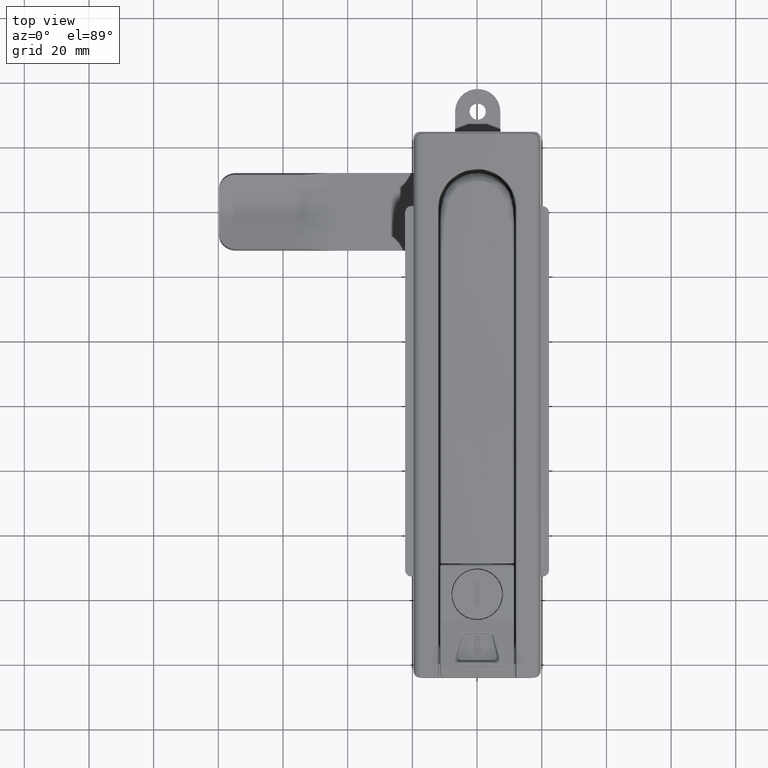
[diagram: clean part render]
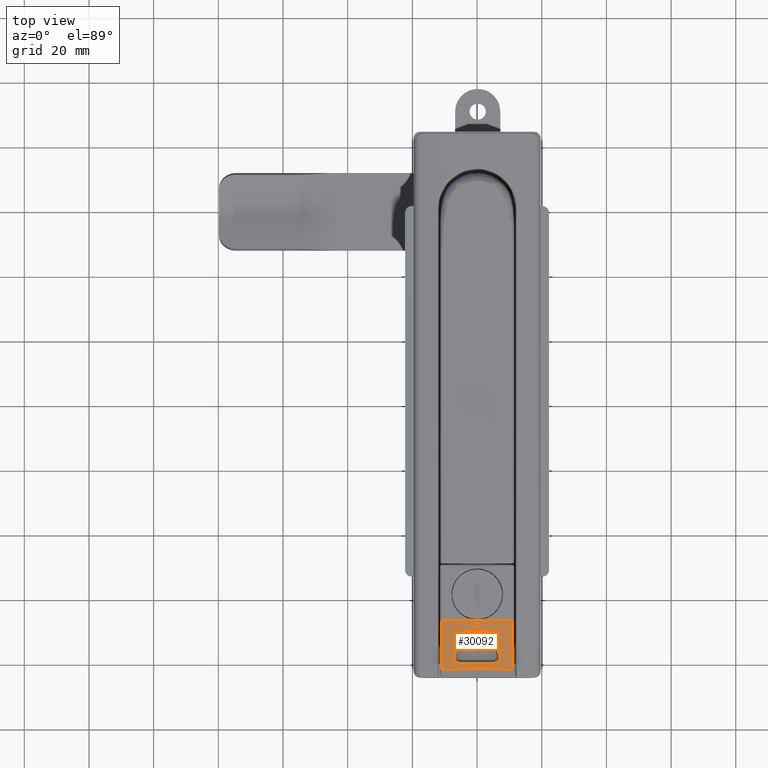
[diagram: same view with one face highlighted and labeled with its STEP entity id]
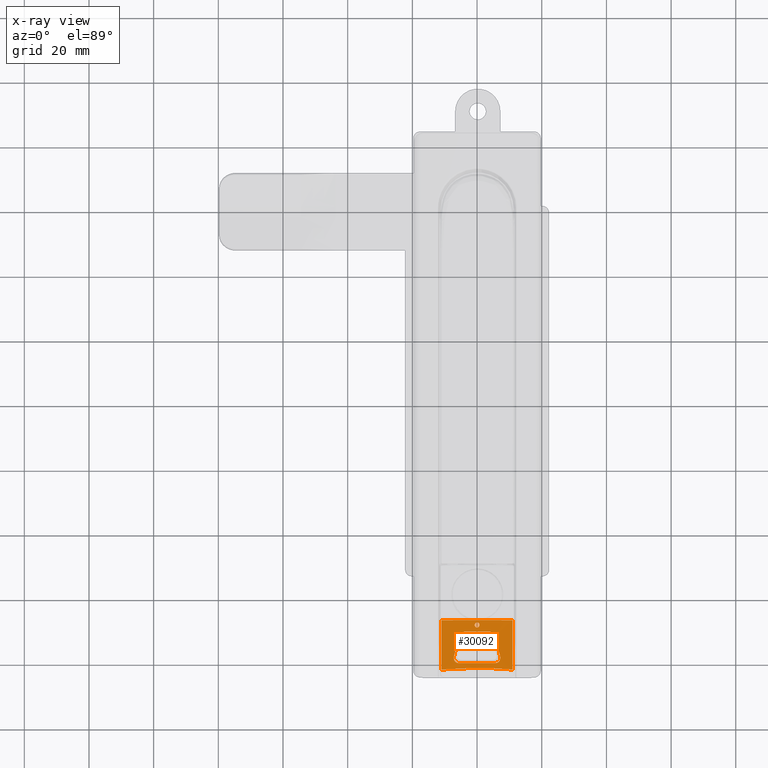
[diagram: x-ray of the same camera — body ghosted, the highlighted face saturated]
A machine part, top view. The second image highlights one B-rep face of the part: STEP entity #30092.
The next image is the same camera in x-ray: the body ghosted, the highlighted face saturated — about 0% of this face is hidden behind the body in this view.
In plain terms, the highlighted face is a freeform B-spline surface patch.
Its self-contained STEP definition (entity closure, byte-faithful):
#466=B_SPLINE_SURFACE_WITH_KNOTS('',3,3,((#69103,#69104,#69105,#69106,#69107,
#69108),(#69109,#69110,#69111,#69112,#69113,#69114),(#69115,#69116,#69117,
#69118,#69119,#69120),(#69121,#69122,#69123,#69124,#69125,#69126),(#69127,
#69128,#69129,#69130,#69131,#69132),(#69133,#69134,#69135,#69136,#69137,
#69138),(#69139,#69140,#69141,#69142,#69143,#69144)),.UNSPECIFIED.,.F.,
 .F.,.F.,(4,1,1,1,4),(4,1,1,4),(0.,0.25,0.5,0.75,1.),(0.,0.00999237478913283,
0.961647116611307,1.),.UNSPECIFIED.);
#2411=B_SPLINE_CURVE_WITH_KNOTS('',3,(#67579,#67580,#67581,#67582,#67583,
#67584,#67585,#67586,#67587,#67588,#67589,#67590,#67591,#67592,#67593,#67594,
#67595,#67596,#67597,#67598,#67599,#67600,#67601,#67602,#67603,#67604,#67605,
#67606,#67607,#67608,#67609,#67610,#67611,#67612,#67613,#67614,#67615,#67616,
#67617,#67618,#67619,#67620,#67621,#67622),.UNSPECIFIED.,.T.,.F.,(4,2,2,
2,2,2,2,2,2,2,2,2,2,2,2,2,2,2,2,2,2,4),(0.,0.0195291723512512,0.0319623175673323,
0.0428763882786167,0.0557252596081275,0.0767206693615535,0.106866783749459,
0.133969840136838,0.162899208878109,0.192958568832212,0.222301564469527,
0.24853663386686,0.263336816806255,0.274543203075875,0.285985995544227,
0.301813773108014,0.331882772521763,0.358140326482411,0.386178482621926,
0.416145000960438,0.445948041574119,0.473926306790059),.UNSPECIFIED.);
#2438=B_SPLINE_CURVE_WITH_KNOTS('',3,(#69153,#69154,#69155,#69156),
 .UNSPECIFIED.,.F.,.F.,(4,4),(0.,0.0605421784685583),.UNSPECIFIED.);
#2439=B_SPLINE_CURVE_WITH_KNOTS('',3,(#69162,#69163,#69164,#69165,#69166,
#69167,#69168,#69169,#69170,#69171,#69172,#69173,#69174,#69175,#69176,#69177,
#69178,#69179,#69180,#69181,#69182,#69183,#69184,#69185,#69186,#69187,#69188,
#69189,#69190,#69191,#69192,#69193,#69194,#69195,#69196,#69197,#69198,#69199,
#69200,#69201,#69202,#69203,#69204,#69205,#69206,#69207,#69208,#69209,#69210,
#69211,#69212,#69213,#69214,#69215,#69216,#69217,#69218,#69219,#69220,#69221),
 .UNSPECIFIED.,.F.,.F.,(4,2,2,2,2,2,2,2,2,2,2,2,2,2,2,2,2,2,2,2,2,2,2,2,
2,2,2,2,2,4),(0.,0.0357708257350015,0.0733009753068901,0.11257997840001,
0.153998599984531,0.196152984692158,0.238366379655901,0.280873913152827,
0.320950578577,0.359928797105915,0.397253953380952,0.408396513643606,0.448395036165848,
0.486558178237106,0.499519930276303,0.5,0.535417749766672,0.572090464470969,
0.610034231174652,0.649803700307655,0.690533113662324,0.731949791581025,
0.773654987489743,0.814895195155441,0.85544020413514,0.894544246554465,
0.91326691664003,0.953378379597088,0.991770552061254,1.),.UNSPECIFIED.);
#2440=B_SPLINE_CURVE_WITH_KNOTS('',3,(#69223,#69224,#69225,#69226,#69227),
 .UNSPECIFIED.,.F.,.F.,(4,1,4),(0.,0.500000000001228,1.),.UNSPECIFIED.);
#2441=B_SPLINE_CURVE_WITH_KNOTS('',3,(#69229,#69230,#69231,#69232,#69233,
#69234,#69235,#69236,#69237,#69238,#69239,#69240,#69241,#69242,#69243,#69244,
#69245,#69246,#69247,#69248,#69249,#69250,#69251,#69252,#69253,#69254,#69255,
#69256,#69257,#69258,#69259,#69260,#69261,#69262,#69263,#69264,#69265,#69266,
#69267,#69268,#69269,#69270,#69271,#69272,#69273,#69274,#69275,#69276,#69277,
#69278),.UNSPECIFIED.,.F.,.F.,(4,2,2,2,2,2,2,2,2,2,2,2,2,2,2,2,2,2,2,2,
2,2,2,2,4),(0.,0.040728020313277,0.0830290731726635,0.126973444696566,0.173601764109495,
0.221381666752235,0.270090914948617,0.31914481874055,0.367498029620194,
0.41498787207907,0.460729592362321,0.5,0.500522683354325,0.54246029788417,
0.585926722520741,0.631757646567153,0.678948370119745,0.72718517483731,
0.775828234682975,0.823369957035681,0.869510622630889,0.913077457321135,
0.937428661267244,0.974931872222094,0.999999999999995),.UNSPECIFIED.);
#2442=B_SPLINE_CURVE_WITH_KNOTS('',3,(#69282,#69283,#69284,#69285,#69286,
#69287,#69288,#69289,#69290,#69291,#69292,#69293,#69294,#69295,#69296,#69297,
#69298,#69299,#69300,#69301,#69302,#69303),.UNSPECIFIED.,.F.,.F.,(4,2,2,
2,2,2,2,2,2,2,4),(0.,0.0951039272646496,0.193244462314911,0.295883843141502,
0.400637972293855,0.506417322851333,0.611772777834931,0.714027757251198,
0.813866206548515,0.909508419245603,1.),.UNSPECIFIED.);
#2443=B_SPLINE_CURVE_WITH_KNOTS('',3,(#69306,#69307,#69308,#69309,#69310,
#69311,#69312,#69313,#69314,#69315,#69316,#69317,#69318,#69319,#69320,#69321,
#69322,#69323,#69324,#69325,#69326,#69327),.UNSPECIFIED.,.F.,.F.,(4,2,2,
2,2,2,2,2,2,2,4),(0.,0.0946407289536396,0.192372188094754,0.294730025732506,
0.399311620174587,0.505054461450249,0.610518672994111,0.713067591518369,
0.813272915780215,0.909371031269213,1.),.UNSPECIFIED.);
#2687=FACE_BOUND('',#6385,.T.);
#2688=FACE_BOUND('',#6386,.T.);
#2787=ELLIPSE('',#31982,84.7746318186807,59.8258751481488);
#2788=ELLIPSE('',#31983,84.7746243124644,59.8258645451666);
#2794=ELLIPSE('',#32074,85.0541057275226,79.9376758886292);
#2795=ELLIPSE('',#32075,70.1547299272525,40.411639740969);
#4529=FACE_OUTER_BOUND('',#6384,.T.);
#6384=EDGE_LOOP('',(#25964,#25965,#25966,#25967,#25968,#25969,#25970,#25971));
#6385=EDGE_LOOP('',(#25972));
#6386=EDGE_LOOP('',(#25973,#25974,#25975,#25976,#25977,#25978,#25979,#25980));
#8255=LINE('',#69148,#10031);
#8256=LINE('',#69157,#10032);
#10031=VECTOR('',#37322,15.4305301893659);
#10032=VECTOR('',#37327,15.4305301893638);
#10931=CIRCLE('',#32076,119.792025334916);
#10932=CIRCLE('',#32077,1633.5283028876);
#10933=CIRCLE('',#32078,1633.52832517548);
#10934=CIRCLE('',#32079,114.59653422842);
#13506=VERTEX_POINT('',#67578);
#13559=VERTEX_POINT('',#67932);
#13560=VERTEX_POINT('',#67934);
#13561=VERTEX_POINT('',#67936);
#13562=VERTEX_POINT('',#68083);
#13668=VERTEX_POINT('',#69145);
#13669=VERTEX_POINT('',#69146);
#13670=VERTEX_POINT('',#69149);
#13671=VERTEX_POINT('',#69151);
#13672=VERTEX_POINT('',#69158);
#13673=VERTEX_POINT('',#69159);
#13674=VERTEX_POINT('',#69161);
#13675=VERTEX_POINT('',#69222);
#13676=VERTEX_POINT('',#69228);
#13677=VERTEX_POINT('',#69279);
#13678=VERTEX_POINT('',#69281);
#13679=VERTEX_POINT('',#69304);
#17634=EDGE_CURVE('',#13506,#13506,#2411,.T.);
#17693=EDGE_CURVE('',#13559,#13560,#2787,.T.);
#17695=EDGE_CURVE('',#13561,#13562,#2788,.T.);
#17848=EDGE_CURVE('',#13668,#13669,#2794,.T.);
#17849=EDGE_CURVE('',#13669,#13562,#8255,.T.);
#17850=EDGE_CURVE('',#13670,#13561,#2795,.T.);
#17851=EDGE_CURVE('',#13671,#13670,#10931,.T.);
#17852=EDGE_CURVE('',#13560,#13671,#2438,.T.);
#17853=EDGE_CURVE('',#13559,#13668,#8256,.T.);
#17854=EDGE_CURVE('',#13672,#13673,#10932,.T.);
#17855=EDGE_CURVE('',#13673,#13674,#2439,.T.);
#17856=EDGE_CURVE('',#13674,#13675,#2440,.T.);
#17857=EDGE_CURVE('',#13675,#13676,#2441,.T.);
#17858=EDGE_CURVE('',#13676,#13677,#10933,.T.);
#17859=EDGE_CURVE('',#13677,#13678,#2442,.T.);
#17860=EDGE_CURVE('',#13678,#13679,#10934,.T.);
#17861=EDGE_CURVE('',#13679,#13672,#2443,.T.);
#25964=ORIENTED_EDGE('',*,*,#17848,.T.);
#25965=ORIENTED_EDGE('',*,*,#17849,.T.);
#25966=ORIENTED_EDGE('',*,*,#17695,.F.);
#25967=ORIENTED_EDGE('',*,*,#17850,.F.);
#25968=ORIENTED_EDGE('',*,*,#17851,.F.);
#25969=ORIENTED_EDGE('',*,*,#17852,.F.);
#25970=ORIENTED_EDGE('',*,*,#17693,.F.);
#25971=ORIENTED_EDGE('',*,*,#17853,.T.);
#25972=ORIENTED_EDGE('',*,*,#17634,.T.);
#25973=ORIENTED_EDGE('',*,*,#17854,.T.);
#25974=ORIENTED_EDGE('',*,*,#17855,.T.);
#25975=ORIENTED_EDGE('',*,*,#17856,.T.);
#25976=ORIENTED_EDGE('',*,*,#17857,.T.);
#25977=ORIENTED_EDGE('',*,*,#17858,.T.);
#25978=ORIENTED_EDGE('',*,*,#17859,.T.);
#25979=ORIENTED_EDGE('',*,*,#17860,.T.);
#25980=ORIENTED_EDGE('',*,*,#17861,.T.);
#30092=ADVANCED_FACE('',(#4529,#2687,#2688),#466,.F.);
#31982=AXIS2_PLACEMENT_3D('',#67935,#37054,#37055);
#31983=AXIS2_PLACEMENT_3D('',#68084,#37056,#37057);
#32074=AXIS2_PLACEMENT_3D('',#69147,#37320,#37321);
#32075=AXIS2_PLACEMENT_3D('',#69150,#37323,#37324);
#32076=AXIS2_PLACEMENT_3D('',#69152,#37325,#37326);
#32077=AXIS2_PLACEMENT_3D('',#69160,#37328,#37329);
#32078=AXIS2_PLACEMENT_3D('',#69280,#37330,#37331);
#32079=AXIS2_PLACEMENT_3D('',#69305,#37332,#37333);
#37054=DIRECTION('center_axis',(1.,0.,0.));
#37055=DIRECTION('ref_axis',(0.,0.998939396080404,-0.046044358596016));
#37056=DIRECTION('center_axis',(1.,0.,0.));
#37057=DIRECTION('ref_axis',(0.,0.998939396106571,0.0460443580283091));
#37320=DIRECTION('center_axis',(0.664161945125916,-2.05147272377281E-14,
0.747588730952092));
#37321=DIRECTION('ref_axis',(8.45145622449227E-12,-1.,-7.5357614410109E-12));
#37322=DIRECTION('',(0.993324406193453,6.4754788714311E-15,0.115354341315892));
#37323=DIRECTION('center_axis',(0.999999998498174,7.20123087154622E-7,-5.48008542616439E-5));
#37324=DIRECTION('ref_axis',(3.81854732375826E-6,0.996568172816272,0.0827760648681516));
#37325=DIRECTION('center_axis',(0.999999999959765,-3.20215909881715E-9,
8.97046319368409E-6));
#37326=DIRECTION('ref_axis',(8.96990836408372E-6,0.0114846133751414,-0.999934049612855));
#37327=DIRECTION('',(-0.993324406193454,-6.47547887143196E-15,-0.115354341315888));
#37328=DIRECTION('center_axis',(0.199197455978139,0.884171879509864,0.422564150178208));
#37329=DIRECTION('ref_axis',(0.195645142864149,0.386643039568141,-0.901238113945019));
#37330=DIRECTION('center_axis',(0.199197455983849,-0.884171879521096,0.422564150152016));
#37331=DIRECTION('ref_axis',(0.199393678130494,-0.385616122997995,-0.900856462931575));
#37332=DIRECTION('center_axis',(0.906830566734151,-5.28309984487051E-14,
0.421495341891957));
#37333=DIRECTION('ref_axis',(0.4212857007379,0.0315357286837327,-0.906379532078126));
#67578=CARTESIAN_POINT('',(-128.189324665327,-0.352881657666939,-37.546950528898));
#67579=CARTESIAN_POINT('Ctrl Pts',(-129.512849916115,0.353008494960208,
-37.7006505802503));
#67580=CARTESIAN_POINT('Ctrl Pts',(-129.543432100323,0.295662714213781,
-37.7043710973815));
#67581=CARTESIAN_POINT('Ctrl Pts',(-129.566449752621,0.234549401316013,
-37.7071824359909));
#67582=CARTESIAN_POINT('Ctrl Pts',(-129.590746420521,0.13086065882289,-37.7101522219197));
#67583=CARTESIAN_POINT('Ctrl Pts',(-129.596841270764,0.0898055241136292,
-37.7108981886959));
#67584=CARTESIAN_POINT('Ctrl Pts',(-129.601859386764,0.0121477086541944,
-37.7115123604613));
#67585=CARTESIAN_POINT('Ctrl Pts',(-129.601560828661,-0.0242770077500478,
-37.7114758309059));
#67586=CARTESIAN_POINT('Ctrl Pts',(-129.595158712279,-0.103221940701956,
-37.7106924479942));
#67587=CARTESIAN_POINT('Ctrl Pts',(-129.588047932097,-0.145524372606945,
-37.7098223091866));
#67588=CARTESIAN_POINT('Ctrl Pts',(-129.559923006658,-0.254720276661591,
-37.7063856851149));
#67589=CARTESIAN_POINT('Ctrl Pts',(-129.533097446884,-0.319637802279947,
-37.7031107655381));
#67590=CARTESIAN_POINT('Ctrl Pts',(-129.446898461935,-0.466338995150201,
-37.6926352390137));
#67591=CARTESIAN_POINT('Ctrl Pts',(-129.37932744247,-0.541628965662016,
-37.6844551453854));
#67592=CARTESIAN_POINT('Ctrl Pts',(-129.226970168439,-0.655116215987815,
-37.6661921867919));
#67593=CARTESIAN_POINT('Ctrl Pts',(-129.145827365402,-0.695385513896985,
-37.6565326632028));
#67594=CARTESIAN_POINT('Ctrl Pts',(-128.967519785981,-0.746990503529659,
-37.6355155609383));
#67595=CARTESIAN_POINT('Ctrl Pts',(-128.871209828628,-0.755740782766595,
-37.6242736662665));
#67596=CARTESIAN_POINT('Ctrl Pts',(-128.676810045521,-0.736149552791682,
-37.6018201265879));
#67597=CARTESIAN_POINT('Ctrl Pts',(-128.580642186197,-0.706531759353827,
-37.5908395830089));
#67598=CARTESIAN_POINT('Ctrl Pts',(-128.407484536746,-0.612451479992981,
-37.5712483720709));
#67599=CARTESIAN_POINT('Ctrl Pts',(-128.331709125065,-0.54971267171398,
-37.5627677949626));
#67600=CARTESIAN_POINT('Ctrl Pts',(-128.2148575775,-0.406531051972992,-37.5497646370966));
#67601=CARTESIAN_POINT('Ctrl Pts',(-128.171863351441,-0.329775265833774,
-37.5450170164424));
#67602=CARTESIAN_POINT('Ctrl Pts',(-128.126780419778,-0.200732444841371,
-37.5400479898653));
#67603=CARTESIAN_POINT('Ctrl Pts',(-128.115144548035,-0.152687753592873,
-37.5387685345585));
#67604=CARTESIAN_POINT('Ctrl Pts',(-128.103134209514,-0.0668474930454903,
-37.5374482101042));
#67605=CARTESIAN_POINT('Ctrl Pts',(-128.10072884095,-0.0295212017944262,
-37.5371840079638));
#67606=CARTESIAN_POINT('Ctrl Pts',(-128.101508266688,0.0459701386466374,
-37.5372695858067));
#67607=CARTESIAN_POINT('Ctrl Pts',(-128.104810872073,0.0840213285781851,
-37.5376323019836));
#67608=CARTESIAN_POINT('Ctrl Pts',(-128.119542228389,0.17370489269345,-37.5392519429084));
#67609=CARTESIAN_POINT('Ctrl Pts',(-128.133557133537,0.224693180689769,
-37.5407934219413));
#67610=CARTESIAN_POINT('Ctrl Pts',(-128.189339303064,0.367015209703316,
-37.5469460423664));
#67611=CARTESIAN_POINT('Ctrl Pts',(-128.244148860167,0.451893111145134,
-37.553005983078));
#67612=CARTESIAN_POINT('Ctrl Pts',(-128.374788556135,0.58597767501715,-37.567591127797));
#67613=CARTESIAN_POINT('Ctrl Pts',(-128.446064188195,0.637308445582505,
-37.5755959302734));
#67614=CARTESIAN_POINT('Ctrl Pts',(-128.608170013542,0.715730394411206,
-37.5939791566144));
#67615=CARTESIAN_POINT('Ctrl Pts',(-128.698624965216,0.740278614986911,
-37.6043278523393));
#67616=CARTESIAN_POINT('Ctrl Pts',(-128.890128905551,0.755617473878624,
-37.6264713853315));
#67617=CARTESIAN_POINT('Ctrl Pts',(-128.989675686358,0.743825873867385,
-37.6381092147833));
#67618=CARTESIAN_POINT('Ctrl Pts',(-129.177905122422,0.682312951655463,
-37.6603343389325));
#67619=CARTESIAN_POINT('Ctrl Pts',(-129.264883797668,0.633373617236737,
-37.6707173274895));
#67620=CARTESIAN_POINT('Ctrl Pts',(-129.410364143553,0.508341846433795,
-37.6882057118728));
#67621=CARTESIAN_POINT('Ctrl Pts',(-129.469036668669,0.435164330029992,
-37.6953204201614));
#67622=CARTESIAN_POINT('Ctrl Pts',(-129.512849916115,0.353008494960208,
-37.7006505802503));
#67932=CARTESIAN_POINT('',(-127.349999999999,-10.9955110707675,-36.945182655165));
#67934=CARTESIAN_POINT('',(-127.349999999999,-1.56516752647009,-37.4397763234029));
#67935=CARTESIAN_POINT('Origin',(-127.349999999999,-2.77067505467196,22.4397635151877));
#67936=CARTESIAN_POINT('',(-127.349999999999,1.56516752646869,-37.4397763234026));
#68083=CARTESIAN_POINT('',(-127.349999999999,10.9955110707683,-36.9451826551623));
#68084=CARTESIAN_POINT('Origin',(-127.349999999999,2.77067550877927,22.4397529218796));
#69103=CARTESIAN_POINT('Ctrl Pts',(-127.184714768464,-21.817424229284,-35.4308054963804));
#69104=CARTESIAN_POINT('Ctrl Pts',(-127.239834934616,-21.817424229284,-35.4372065778599));
#69105=CARTESIAN_POINT('Ctrl Pts',(-132.542088729661,-21.817424229284,-36.0529550586216));
#69106=CARTESIAN_POINT('Ctrl Pts',(-137.812470490928,-21.817424229284,-36.6650022536402));
#69107=CARTESIAN_POINT('Ctrl Pts',(-143.030188622354,-21.8174242292841,
-37.2709336436975));
#69108=CARTESIAN_POINT('Ctrl Pts',(-143.232322959458,-21.8174242292841,
-37.2944074183965));
#69109=CARTESIAN_POINT('Ctrl Pts',(-127.187125953741,-18.2417908139315,
-36.0921966174133));
#69110=CARTESIAN_POINT('Ctrl Pts',(-127.241434098168,-18.2417908139315,
-36.0985033991549));
#69111=CARTESIAN_POINT('Ctrl Pts',(-132.466335787282,-18.2417908139315,
-36.7052690127149));
#69112=CARTESIAN_POINT('Ctrl Pts',(-137.736717548549,-18.2417908139316,
-37.3173162077335));
#69113=CARTESIAN_POINT('Ctrl Pts',(-142.954435679976,-18.2417908139316,
-37.9232475977908));
#69114=CARTESIAN_POINT('Ctrl Pts',(-143.156570017079,-18.2417908139316,
-37.9467213724898));
#69115=CARTESIAN_POINT('Ctrl Pts',(-127.190780579657,-11.0003483328557,
-37.0946650527256));
#69116=CARTESIAN_POINT('Ctrl Pts',(-127.243857945317,-11.0003483328557,
-37.1008289046518));
#69117=CARTESIAN_POINT('Ctrl Pts',(-132.351517291536,-11.0003483328557,
-37.6939792147372));
#69118=CARTESIAN_POINT('Ctrl Pts',(-137.621899052803,-11.0003483328557,
-38.3060264097559));
#69119=CARTESIAN_POINT('Ctrl Pts',(-142.83961718423,-11.0003483328559,-38.9119577998132));
#69120=CARTESIAN_POINT('Ctrl Pts',(-143.041751521334,-11.0003483328559,
-38.9354315745121));
#69121=CARTESIAN_POINT('Ctrl Pts',(-127.192623375889,-1.43140539104831E-11,
-37.6001463514665));
#69122=CARTESIAN_POINT('Ctrl Pts',(-127.245080137819,-1.43145235119694E-11,
-37.6062381329453));
#69123=CARTESIAN_POINT('Ctrl Pts',(-132.293621600955,-1.43598314854929E-11,
-38.1925231083821));
#69124=CARTESIAN_POINT('Ctrl Pts',(-137.564003362222,-1.4418524754559E-11,
-38.8045703034007));
#69125=CARTESIAN_POINT('Ctrl Pts',(-142.781721493648,-1.44167606289902E-11,
-39.410501693458));
#69126=CARTESIAN_POINT('Ctrl Pts',(-142.983855830752,-1.44178191043315E-11,
-39.433975468157));
#69127=CARTESIAN_POINT('Ctrl Pts',(-127.190780579657,11.0003483328271,-37.0946650527256));
#69128=CARTESIAN_POINT('Ctrl Pts',(-127.243857945317,11.0003483328271,-37.1008289046518));
#69129=CARTESIAN_POINT('Ctrl Pts',(-132.351517291537,11.0003483328271,-37.6939792147373));
#69130=CARTESIAN_POINT('Ctrl Pts',(-137.621899052803,11.0003483328271,-38.3060264097559));
#69131=CARTESIAN_POINT('Ctrl Pts',(-142.83961718423,11.000348332827,-38.9119577998132));
#69132=CARTESIAN_POINT('Ctrl Pts',(-143.041751521334,11.000348332827,-38.9354315745121));
#69133=CARTESIAN_POINT('Ctrl Pts',(-127.18712595374,18.2417908139028,-36.0921966174133));
#69134=CARTESIAN_POINT('Ctrl Pts',(-127.241434098167,18.2417908139028,-36.0985033991549));
#69135=CARTESIAN_POINT('Ctrl Pts',(-132.466335787282,18.2417908139027,-36.7052690127149));
#69136=CARTESIAN_POINT('Ctrl Pts',(-137.736717548549,18.2417908139027,-37.3173162077335));
#69137=CARTESIAN_POINT('Ctrl Pts',(-142.954435679976,18.2417908139027,-37.9232475977909));
#69138=CARTESIAN_POINT('Ctrl Pts',(-143.15657001708,18.2417908139027,-37.9467213724898));
#69139=CARTESIAN_POINT('Ctrl Pts',(-127.184714768463,21.8174242292553,-35.4308054963804));
#69140=CARTESIAN_POINT('Ctrl Pts',(-127.239834934615,21.8174242292553,-35.4372065778599));
#69141=CARTESIAN_POINT('Ctrl Pts',(-132.542088729661,21.8174242292553,-36.0529550586216));
#69142=CARTESIAN_POINT('Ctrl Pts',(-137.812470490928,21.8174242292552,-36.6650022536402));
#69143=CARTESIAN_POINT('Ctrl Pts',(-143.030188622355,21.8174242292552,-37.2709336436976));
#69144=CARTESIAN_POINT('Ctrl Pts',(-143.232322959458,21.8174242292552,-37.2944074183966));
#69145=CARTESIAN_POINT('',(-142.677522237599,-10.9955110707675,-38.725161301314));
#69146=CARTESIAN_POINT('',(-142.677522237601,10.9955110707683,-38.7251613013116));
#69147=CARTESIAN_POINT('Origin',(-201.936551448069,1.06248343456627E-10,
13.9208865552066));
#69148=CARTESIAN_POINT('',(-142.677522237601,10.9955110707682,-38.7251613013116));
#69149=CARTESIAN_POINT('',(-127.349999990988,1.37585247015915,-37.4420996292728));
#69150=CARTESIAN_POINT('Origin',(-127.347774417363,6.66932632656953,3.23948470669807));
#69151=CARTESIAN_POINT('',(-127.349999999797,-1.3756604904461,-37.4420998271896));
#69152=CARTESIAN_POINT('Origin',(-127.351074514478,8.73737623344195E-5,
82.3420253751953));
#69153=CARTESIAN_POINT('Ctrl Pts',(-127.349999999999,-1.56516752646973,
-37.439776323403));
#69154=CARTESIAN_POINT('Ctrl Pts',(-127.349999999999,-1.50200044778018,
-37.4406013614727));
#69155=CARTESIAN_POINT('Ctrl Pts',(-127.349999999995,-1.43883097455278,
-37.44137569496));
#69156=CARTESIAN_POINT('Ctrl Pts',(-127.349999999797,-1.37566049045171,
-37.4420998271893));
#69157=CARTESIAN_POINT('',(-127.349999999992,-10.9955110707674,-36.9451826551642));
#69158=CARTESIAN_POINT('',(-132.284959401806,5.4242808025338,-37.9003693756241));
#69159=CARTESIAN_POINT('',(-138.408297905398,7.10177805418764,-38.5238071323477));
#69160=CARTESIAN_POINT('Origin',(-458.000176096462,-624.490570194818,1433.6741596379));
#69161=CARTESIAN_POINT('',(-140.665768910977,5.61379558605421,-38.8649038093843));
#69162=CARTESIAN_POINT('Ctrl Pts',(-138.408297905399,7.10177805418767,-38.5238071323477));
#69163=CARTESIAN_POINT('Ctrl Pts',(-138.450059683545,7.11318145845585,-38.5279810010143));
#69164=CARTESIAN_POINT('Ctrl Pts',(-138.491352961013,7.12319572536432,-38.5321845365109));
#69165=CARTESIAN_POINT('Ctrl Pts',(-138.574895687461,7.14115250603317,-38.5408277239245));
#69166=CARTESIAN_POINT('Ctrl Pts',(-138.617092811765,7.14896920203822,-38.5452688669405));
#69167=CARTESIAN_POINT('Ctrl Pts',(-138.702245794633,7.16242145885459,-38.5543699574834));
#69168=CARTESIAN_POINT('Ctrl Pts',(-138.745146008174,7.16793874284788,-38.559030512861));
#69169=CARTESIAN_POINT('Ctrl Pts',(-138.832019513572,7.1767234028166,-38.5686102010026));
#69170=CARTESIAN_POINT('Ctrl Pts',(-138.875924645397,7.17985230971245,-38.5735296448036));
#69171=CARTESIAN_POINT('Ctrl Pts',(-138.963287804553,7.18358274467245,-38.5834659187187));
#69172=CARTESIAN_POINT('Ctrl Pts',(-139.00672493268,7.18413864959142,-38.5884830187348));
#69173=CARTESIAN_POINT('Ctrl Pts',(-139.092613933034,7.18271400025938,-38.5985517238646));
#69174=CARTESIAN_POINT('Ctrl Pts',(-139.135065206368,7.18073006941896,-38.6036034609014));
#69175=CARTESIAN_POINT('Ctrl Pts',(-139.219454854873,7.17421391109674,-38.6137962637829));
#69176=CARTESIAN_POINT('Ctrl Pts',(-139.261388408437,7.16966431940136,-38.618937786891));
#69177=CARTESIAN_POINT('Ctrl Pts',(-139.34230609331,7.15824917317967,-38.6290125566726));
#69178=CARTESIAN_POINT('Ctrl Pts',(-139.381322325487,7.15153072391771,-38.6339409805203));
#69179=CARTESIAN_POINT('Ctrl Pts',(-139.457976433456,7.13578285564629,-38.6437713712727));
#69180=CARTESIAN_POINT('Ctrl Pts',(-139.495623277084,7.12682190543529,-38.6486704160139));
#69181=CARTESIAN_POINT('Ctrl Pts',(-139.569170758957,7.10669326103002,-38.6583926643193));
#69182=CARTESIAN_POINT('Ctrl Pts',(-139.605078113148,7.09563527107905,-38.6632103174238));
#69183=CARTESIAN_POINT('Ctrl Pts',(-139.651667964635,7.07950434483335,-38.6695638495118));
#69184=CARTESIAN_POINT('Ctrl Pts',(-139.662376114774,7.07567399707915,-38.6710312059125));
#69185=CARTESIAN_POINT('Ctrl Pts',(-139.711513922566,7.05751201997147,-38.6777982909314));
#69186=CARTESIAN_POINT('Ctrl Pts',(-139.749920862274,7.04161582962522,-38.6831854182757));
#69187=CARTESIAN_POINT('Ctrl Pts',(-139.824768616912,7.00690091254124,-38.6938980073188));
#69188=CARTESIAN_POINT('Ctrl Pts',(-139.861219039174,6.98824982103796,-38.6992149785459));
#69189=CARTESIAN_POINT('Ctrl Pts',(-139.909799897121,6.9607223027931,-38.7064539550416));
#69190=CARTESIAN_POINT('Ctrl Pts',(-139.922094946378,6.95352397624057,-38.7082992588935));
#69191=CARTESIAN_POINT('Ctrl Pts',(-139.934818386047,6.94582246758404,-38.7102232715047));
#69192=CARTESIAN_POINT('Ctrl Pts',(-139.935272721843,6.94554708979033,-38.7102919950723));
#69193=CARTESIAN_POINT('Ctrl Pts',(-139.96924047251,6.92493133706354,-38.7154314959622));
#69194=CARTESIAN_POINT('Ctrl Pts',(-140.001218587449,6.90349493537575,-38.7203793366054));
#69195=CARTESIAN_POINT('Ctrl Pts',(-140.063471626892,6.85796752478039,-38.7302132051681));
#69196=CARTESIAN_POINT('Ctrl Pts',(-140.09364622321,6.83380904519762,-38.7350908743323));
#69197=CARTESIAN_POINT('Ctrl Pts',(-140.152281398698,6.7828892738108,-38.7447771558031));
#69198=CARTESIAN_POINT('Ctrl Pts',(-140.180646521308,6.75606643791083,-38.7495775644455));
#69199=CARTESIAN_POINT('Ctrl Pts',(-140.236030217261,6.69942086297321,-38.7591706517494));
#69200=CARTESIAN_POINT('Ctrl Pts',(-140.262918648618,6.66951558141505,-38.7639519065174));
#69201=CARTESIAN_POINT('Ctrl Pts',(-140.314638879564,6.60724787504399,-38.7733892834789));
#69202=CARTESIAN_POINT('Ctrl Pts',(-140.339405634058,6.57484305286097,-38.7780396676678));
#69203=CARTESIAN_POINT('Ctrl Pts',(-140.386712962099,6.50771318594355,-38.7871836477494));
#69204=CARTESIAN_POINT('Ctrl Pts',(-140.409209206737,6.47295764772782,-38.7916733489333));
#69205=CARTESIAN_POINT('Ctrl Pts',(-140.451749318282,6.40134845910035,-38.8004527854221));
#69206=CARTESIAN_POINT('Ctrl Pts',(-140.471775301204,6.36448125746372,-38.8047409888441));
#69207=CARTESIAN_POINT('Ctrl Pts',(-140.509006407361,6.28920649170527,-38.8130398492286));
#69208=CARTESIAN_POINT('Ctrl Pts',(-140.526240703227,6.25082002959198,-38.8170531379866));
#69209=CARTESIAN_POINT('Ctrl Pts',(-140.557815925837,6.17267391474213,-38.8247803182323));
#69210=CARTESIAN_POINT('Ctrl Pts',(-140.572200940622,6.13294769807299,-38.828498184438));
#69211=CARTESIAN_POINT('Ctrl Pts',(-140.597805815963,6.05284759617229,-38.8355607399555));
#69212=CARTESIAN_POINT('Ctrl Pts',(-140.609120076989,6.01254635299353,-38.8389140423596));
#69213=CARTESIAN_POINT('Ctrl Pts',(-140.623813380788,5.95142489778686,-38.8436815759941));
#69214=CARTESIAN_POINT('Ctrl Pts',(-140.628253990746,5.93139925496696,-38.8451954134572));
#69215=CARTESIAN_POINT('Ctrl Pts',(-140.641157925121,5.86771157718874,-38.8498518199777));
#69216=CARTESIAN_POINT('Ctrl Pts',(-140.64843727601,5.82315128066013,-38.8528828264353));
#69217=CARTESIAN_POINT('Ctrl Pts',(-140.659268972138,5.73376246775379,-38.8584680776641));
#69218=CARTESIAN_POINT('Ctrl Pts',(-140.662967716458,5.68902701143445,-38.8610372117776));
#69219=CARTESIAN_POINT('Ctrl Pts',(-140.66522753269,5.63352309686574,-38.8639155611713));
#69220=CARTESIAN_POINT('Ctrl Pts',(-140.66554182861,5.62368126876073,-38.8644144705707));
#69221=CARTESIAN_POINT('Ctrl Pts',(-140.665768910977,5.61379558605422,-38.8649038093844));
#69222=CARTESIAN_POINT('',(-140.665768910978,-5.61379558605429,-38.8649038093858));
#69223=CARTESIAN_POINT('Ctrl Pts',(-140.665768910977,5.61379558605422,-38.8649038093844));
#69224=CARTESIAN_POINT('Ctrl Pts',(-140.708706479186,3.74457438189641,-38.9574297900148));
#69225=CARTESIAN_POINT('Ctrl Pts',(-140.75160529549,-5.41400257958458E-12,
-39.0502338485042));
#69226=CARTESIAN_POINT('Ctrl Pts',(-140.708706479186,-3.74457438190643,
-38.9574297900153));
#69227=CARTESIAN_POINT('Ctrl Pts',(-140.665768910978,-5.61379558605429,
-38.8649038093858));
#69228=CARTESIAN_POINT('',(-138.4082979054,-7.10177805418804,-38.5238071323496));
#69229=CARTESIAN_POINT('Ctrl Pts',(-140.665768910978,-5.61379558605429,
-38.8649038093858));
#69230=CARTESIAN_POINT('Ctrl Pts',(-140.664645316248,-5.66270956005497,
-38.862482579945));
#69231=CARTESIAN_POINT('Ctrl Pts',(-140.661378794026,-5.71076565903193,
-38.8598161405373));
#69232=CARTESIAN_POINT('Ctrl Pts',(-140.650848138285,-5.8068221230254,-38.8539603513142));
#69233=CARTESIAN_POINT('Ctrl Pts',(-140.643434416539,-5.85474905799771,
-38.8507547482852));
#69234=CARTESIAN_POINT('Ctrl Pts',(-140.624599977798,-5.95027951489865,
-38.8438384542468));
#69235=CARTESIAN_POINT('Ctrl Pts',(-140.613034719444,-5.99779861712619,
-38.8401129400788));
#69236=CARTESIAN_POINT('Ctrl Pts',(-140.585555191265,-6.09326481188952,
-38.8320842832245));
#69237=CARTESIAN_POINT('Ctrl Pts',(-140.569418557271,-6.14106132427949,
-38.8277597391355));
#69238=CARTESIAN_POINT('Ctrl Pts',(-140.533090683027,-6.23502924049478,
-38.8186754342589));
#69239=CARTESIAN_POINT('Ctrl Pts',(-140.512808940263,-6.2811320798814,-38.8139074882495));
#69240=CARTESIAN_POINT('Ctrl Pts',(-140.468307597155,-6.37123986672156,
-38.8039815824824));
#69241=CARTESIAN_POINT('Ctrl Pts',(-140.444018838948,-6.41518734484089,
-38.7988177588074));
#69242=CARTESIAN_POINT('Ctrl Pts',(-140.391801133788,-6.50023516415955,
-38.7881814337075));
#69243=CARTESIAN_POINT('Ctrl Pts',(-140.363847336442,-6.54131394199419,
-38.7827069149714));
#69244=CARTESIAN_POINT('Ctrl Pts',(-140.304952653297,-6.61962122738834,
-38.771586809445));
#69245=CARTESIAN_POINT('Ctrl Pts',(-140.274059732248,-6.65689701319887,
-38.765944686219));
#69246=CARTESIAN_POINT('Ctrl Pts',(-140.209545143158,-6.72747803960802,
-38.7545339084359));
#69247=CARTESIAN_POINT('Ctrl Pts',(-140.175981695461,-6.76084286850239,
-38.7487692278134));
#69248=CARTESIAN_POINT('Ctrl Pts',(-140.106888989567,-6.8229906227825,-38.7372432123835));
#69249=CARTESIAN_POINT('Ctrl Pts',(-140.071477205234,-6.85189737108166,
-38.7314894926789));
#69250=CARTESIAN_POINT('Ctrl Pts',(-140.002741721856,-6.9024396284258,-38.7206170327087));
#69251=CARTESIAN_POINT('Ctrl Pts',(-139.969830874076,-6.92452489387177,
-38.7155235760154));
#69252=CARTESIAN_POINT('Ctrl Pts',(-139.935254263003,-6.94551625561498,
-38.7102916108182));
#69253=CARTESIAN_POINT('Ctrl Pts',(-139.934799969601,-6.94579168010712,
-38.7102228896173));
#69254=CARTESIAN_POINT('Ctrl Pts',(-139.897884894206,-6.96814167590157,
-38.7046403734567));
#69255=CARTESIAN_POINT('Ctrl Pts',(-139.860865523572,-6.98835750790936,
-38.699167588393));
#69256=CARTESIAN_POINT('Ctrl Pts',(-139.784433458338,-7.02611378265716,
-38.6880962519882));
#69257=CARTESIAN_POINT('Ctrl Pts',(-139.74498232487,-7.04352979404559,-38.6825003444699));
#69258=CARTESIAN_POINT('Ctrl Pts',(-139.662844580104,-7.07593459712073,
-38.6710710634892));
#69259=CARTESIAN_POINT('Ctrl Pts',(-139.620098282729,-7.090739938902,-38.6652412733629));
#69260=CARTESIAN_POINT('Ctrl Pts',(-139.532134015134,-7.11735269589836,
-38.6534667949356));
#69261=CARTESIAN_POINT('Ctrl Pts',(-139.486879686516,-7.12905807459623,
-38.6475237544315));
#69262=CARTESIAN_POINT('Ctrl Pts',(-139.394049386463,-7.14928128480206,
-38.6355521112185));
#69263=CARTESIAN_POINT('Ctrl Pts',(-139.346443381567,-7.15772261437777,
-38.6295244408037));
#69264=CARTESIAN_POINT('Ctrl Pts',(-139.249393948615,-7.17118516900672,
-38.6174544232783));
#69265=CARTESIAN_POINT('Ctrl Pts',(-139.199937479887,-7.17617680871248,
-38.611412277806));
#69266=CARTESIAN_POINT('Ctrl Pts',(-139.100645615479,-7.18253482965978,
-38.5994960831718));
#69267=CARTESIAN_POINT('Ctrl Pts',(-139.050843254287,-7.18398034680012,
-38.5936212405241));
#69268=CARTESIAN_POINT('Ctrl Pts',(-138.951258092705,-7.18338024310862,
-38.5820794151311));
#69269=CARTESIAN_POINT('Ctrl Pts',(-138.901517153323,-7.18143588181942,
-38.5764113329288));
#69270=CARTESIAN_POINT('Ctrl Pts',(-138.80350151965,-7.17428294460459,-38.565439177015));
#69271=CARTESIAN_POINT('Ctrl Pts',(-138.755299280818,-7.16926207576776,
-38.5601323967726));
#69272=CARTESIAN_POINT('Ctrl Pts',(-138.679300636518,-7.15886661614461,
-38.5519134238941));
#69273=CARTESIAN_POINT('Ctrl Pts',(-138.651881714082,-7.15462429541117,
-38.548977535985));
#69274=CARTESIAN_POINT('Ctrl Pts',(-138.581841119706,-7.14248656774538,
-38.5415559246548));
#69275=CARTESIAN_POINT('Ctrl Pts',(-138.538937039994,-7.13384542355364,
-38.5370820507628));
#69276=CARTESIAN_POINT('Ctrl Pts',(-138.466691883811,-7.11710249921813,
-38.5296809384987));
#69277=CARTESIAN_POINT('Ctrl Pts',(-138.437571352516,-7.10977141478233,
-38.5267328584346));
#69278=CARTESIAN_POINT('Ctrl Pts',(-138.4082979054,-7.10177805418804,-38.5238071323496));
#69279=CARTESIAN_POINT('',(-132.284959401805,-5.4242808025334,-37.9003693756253));
#69280=CARTESIAN_POINT('Origin',(-458.000180488895,624.490578759074,1433.67417974048));
#69281=CARTESIAN_POINT('',(-130.911437836256,-3.61388521150832,-37.8091062101212));
#69282=CARTESIAN_POINT('Ctrl Pts',(-132.284959401805,-5.4242808025334,-37.9003693756253));
#69283=CARTESIAN_POINT('Ctrl Pts',(-132.207056684216,-5.40286926435363,
-37.8922914280122));
#69284=CARTESIAN_POINT('Ctrl Pts',(-132.131867995561,-5.3767206780022,-37.8847343975835));
#69285=CARTESIAN_POINT('Ctrl Pts',(-131.984856687619,-5.31489208634576,
-37.8704058420033));
#69286=CARTESIAN_POINT('Ctrl Pts',(-131.913217811699,-5.2789341163037,-37.8636670820381));
#69287=CARTESIAN_POINT('Ctrl Pts',(-131.773137989155,-5.1969614533598,-37.8509545260388));
#69288=CARTESIAN_POINT('Ctrl Pts',(-131.704993643015,-5.15056104703077,
-37.8450299223926));
#69289=CARTESIAN_POINT('Ctrl Pts',(-131.574677636423,-5.04864554426456,
-37.8341976428853));
#69290=CARTESIAN_POINT('Ctrl Pts',(-131.512657411293,-4.99296178451614,
-37.8293134145698));
#69291=CARTESIAN_POINT('Ctrl Pts',(-131.396102556391,-4.87347599499317,
-37.8206653252665));
#69292=CARTESIAN_POINT('Ctrl Pts',(-131.341646571683,-4.80959915734458,
-37.8169128835059));
#69293=CARTESIAN_POINT('Ctrl Pts',(-131.24167889,-4.67525266639109,-37.8106047474689));
#69294=CARTESIAN_POINT('Ctrl Pts',(-131.19613173882,-4.60480970025262,-37.8080443144857));
#69295=CARTESIAN_POINT('Ctrl Pts',(-131.115526093617,-4.46003442697039,
-37.8041657393325));
#69296=CARTESIAN_POINT('Ctrl Pts',(-131.080198126234,-4.38587684643797,
-37.8028132729953));
#69297=CARTESIAN_POINT('Ctrl Pts',(-131.019662567513,-4.23433400795703,
-37.801261625743));
#69298=CARTESIAN_POINT('Ctrl Pts',(-130.994235282978,-4.15706583359245,
-37.8010359553149));
#69299=CARTESIAN_POINT('Ctrl Pts',(-130.953904521267,-4.00166603095652,
-37.8016796243427));
#69300=CARTESIAN_POINT('Ctrl Pts',(-130.938603586753,-3.92370671009269,
-37.8025033601025));
#69301=CARTESIAN_POINT('Ctrl Pts',(-130.918139863061,-3.76876022662384,
-37.8051278461372));
#69302=CARTESIAN_POINT('Ctrl Pts',(-130.912475549642,-3.6919464794076,-37.8068736166802));
#69303=CARTESIAN_POINT('Ctrl Pts',(-130.911437836256,-3.61388521150832,
-37.8091062101212));
#69304=CARTESIAN_POINT('',(-130.911437836256,3.6138852115088,-37.8091062101203));
#69305=CARTESIAN_POINT('Origin',(-179.18931906081,-1.47259981986281E-11,
66.0588468616096));
#69306=CARTESIAN_POINT('Ctrl Pts',(-130.911437836256,3.6138852115088,-37.8091062101203));
#69307=CARTESIAN_POINT('Ctrl Pts',(-130.91252289202,3.69550777732354,-37.8067717616796));
#69308=CARTESIAN_POINT('Ctrl Pts',(-130.918665986471,3.77576784403786,-37.8049694964608));
#69309=CARTESIAN_POINT('Ctrl Pts',(-130.940642279014,3.93558965763598,-37.8023486852078));
#69310=CARTESIAN_POINT('Ctrl Pts',(-130.956785513145,4.01504346559322,-37.8015641738445));
#69311=CARTESIAN_POINT('Ctrl Pts',(-130.999262106384,4.17355960703082,-37.8010434636728));
#69312=CARTESIAN_POINT('Ctrl Pts',(-131.02604171779,4.25242595814426,-37.8013586194718));
#69313=CARTESIAN_POINT('Ctrl Pts',(-131.089639210215,4.40671422081548,-37.8031429123649));
#69314=CARTESIAN_POINT('Ctrl Pts',(-131.126662863517,4.48202479506851,-37.8046369620482));
#69315=CARTESIAN_POINT('Ctrl Pts',(-131.210253488569,4.62741228590306,-37.8088136248127));
#69316=CARTESIAN_POINT('Ctrl Pts',(-131.256922302576,4.69742257272181,-37.8115092496058));
#69317=CARTESIAN_POINT('Ctrl Pts',(-131.358803312067,4.83032621796006,-37.8180748591462));
#69318=CARTESIAN_POINT('Ctrl Pts',(-131.413993204038,4.89323857320495,-37.8219417397928));
#69319=CARTESIAN_POINT('Ctrl Pts',(-131.530849461021,5.00970284026101,-37.8307316826804));
#69320=CARTESIAN_POINT('Ctrl Pts',(-131.592295228327,5.06346593655754,-37.8356226220408));
#69321=CARTESIAN_POINT('Ctrl Pts',(-131.72095786438,5.16171920263496,-37.8464071314257));
#69322=CARTESIAN_POINT('Ctrl Pts',(-131.788011233586,5.20639367066998,-37.8522752527303));
#69323=CARTESIAN_POINT('Ctrl Pts',(-131.925823732464,5.28545887458313,-37.8648450688696));
#69324=CARTESIAN_POINT('Ctrl Pts',(-131.996318752106,5.32019629619975,-37.8715027659976));
#69325=CARTESIAN_POINT('Ctrl Pts',(-132.138919743244,5.3791601474296,-37.8854437192877));
#69326=CARTESIAN_POINT('Ctrl Pts',(-132.210706032894,5.40387228672604,-37.8926698390387));
#69327=CARTESIAN_POINT('Ctrl Pts',(-132.284959401806,5.42428080253379,-37.9003693756241));